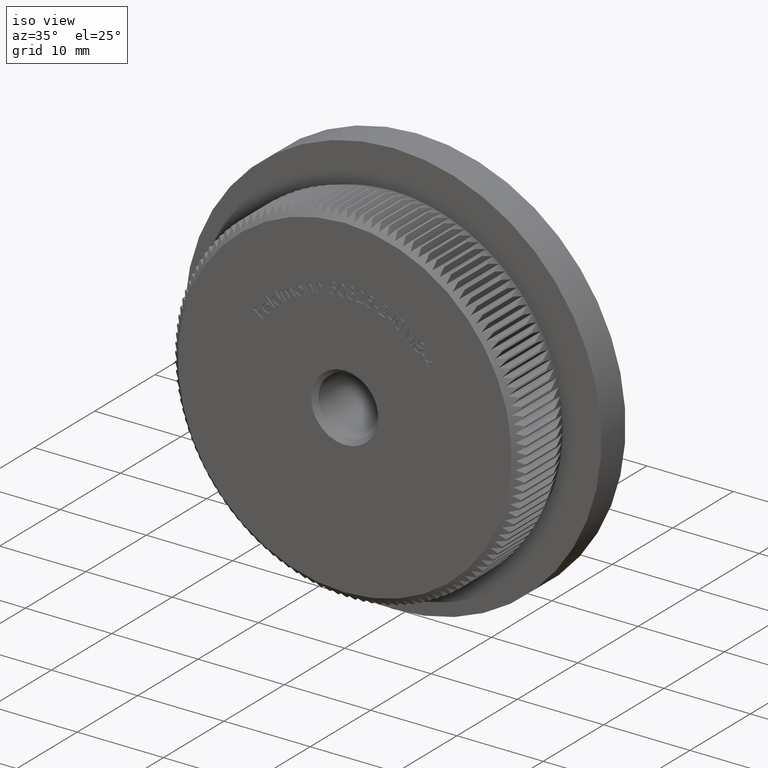
[diagram: clean part render]
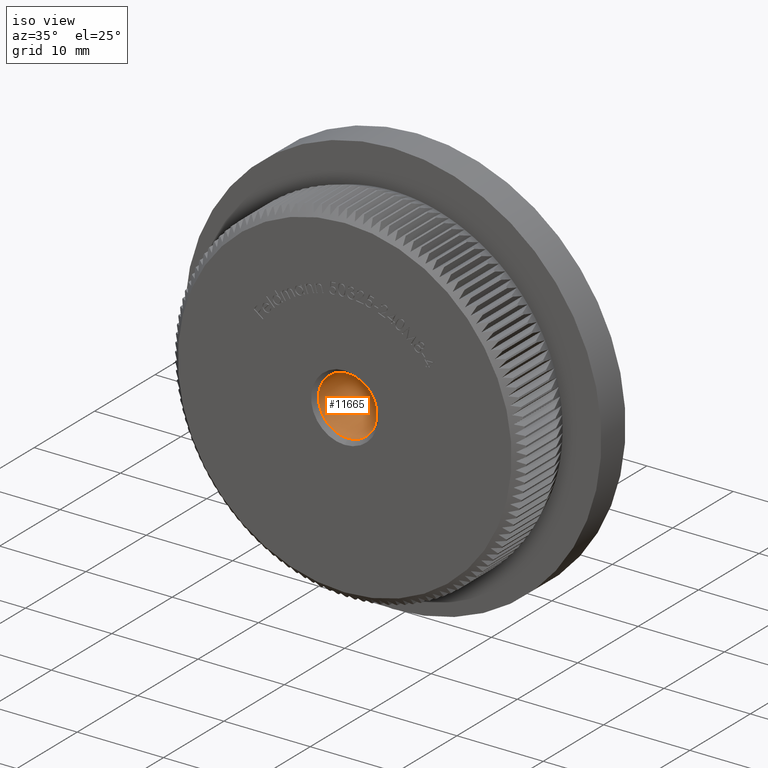
[diagram: same view with one face highlighted and labeled with its STEP entity id]
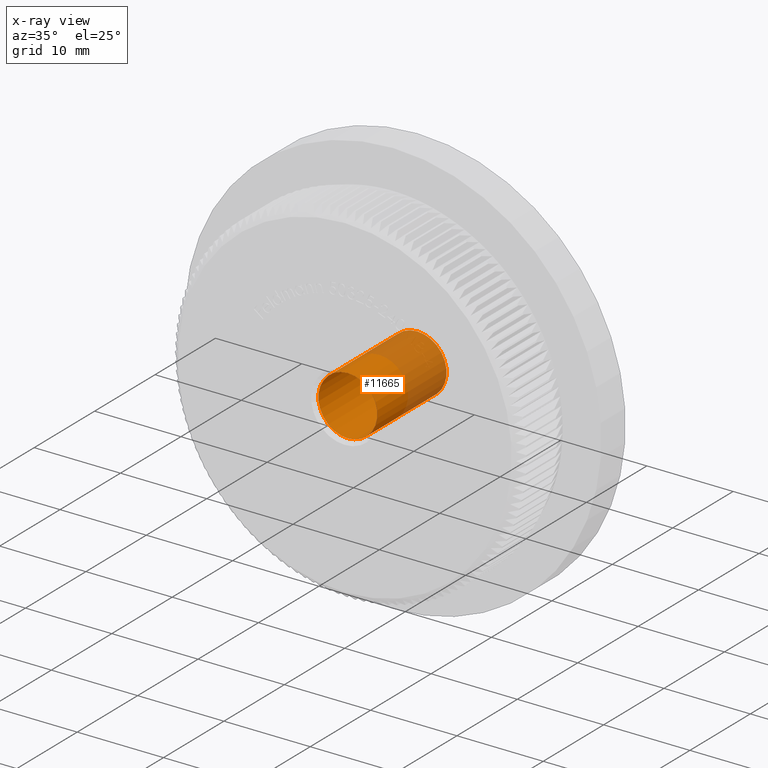
[diagram: x-ray of the same camera — body ghosted, the highlighted face saturated]
A machine part, iso view. The second image highlights one B-rep face of the part: STEP entity #11665.
The next image is the same camera in x-ray: the body ghosted, the highlighted face saturated — about 37% of this face is hidden behind the body in this view.
In plain terms, the highlighted cylindrical surface (bore or boss wall) has radius 3.4 mm, axis along (-0, -1, -0).
Its self-contained STEP definition (entity closure, byte-faithful):
#1960 = CARTESIAN_POINT ( 'NONE',  ( 0.0000000000000000000, 0.5000000000000076600, -3.399999999999997700 ) ) ;
#2195 = EDGE_CURVE ( 'NONE', #17715, #17715, #7514, .T. ) ;
#3105 = CARTESIAN_POINT ( 'NONE',  ( 0.0000000000000000000, 11.99999999999998000, 0.0000000000000000000 ) ) ;
#3508 = CIRCLE ( 'NONE', #17305, 3.399999999999997700 ) ;
#3864 = EDGE_LOOP ( 'NONE', ( #13737 ) ) ;
#4801 = DIRECTION ( 'NONE',  ( 0.0000000000000000000, 0.0000000000000000000, 1.000000000000000000 ) ) ;
#5044 = DIRECTION ( 'NONE',  ( 0.0000000000000000000, -1.000000000000000000, 0.0000000000000000000 ) ) ;
#5364 = DIRECTION ( 'NONE',  ( 0.0000000000000000000, 0.0000000000000000000, -1.000000000000000000 ) ) ;
#5914 = AXIS2_PLACEMENT_3D ( 'NONE', #27299, #5044, #5364 ) ;
#6809 = ORIENTED_EDGE ( 'NONE', *, *, #2195, .T. ) ;
#6832 = FACE_OUTER_BOUND ( 'NONE', #3864, .T. ) ;
#7167 = EDGE_LOOP ( 'NONE', ( #6809 ) ) ;
#7514 = CIRCLE ( 'NONE', #5914, 3.399999999999997700 ) ;
#11665 = ADVANCED_FACE ( 'NONE', ( #17549, #6832 ), #16014, .F. ) ;
#11906 = CARTESIAN_POINT ( 'NONE',  ( 0.0000000000000000000, 11.99999999999998000, 3.399999999999997700 ) ) ;
#12384 = VERTEX_POINT ( 'NONE', #11906 ) ;
#12972 = CARTESIAN_POINT ( 'NONE',  ( 0.0000000000000000000, 0.0000000000000000000, 0.0000000000000000000 ) ) ;
#13737 = ORIENTED_EDGE ( 'NONE', *, *, #21299, .T. ) ;
#16014 = CYLINDRICAL_SURFACE ( 'NONE', #31102, 3.399999999999997700 ) ;
#17112 = DIRECTION ( 'NONE',  ( -0.0000000000000000000, 1.000000000000000000, -0.0000000000000000000 ) ) ;
#17305 = AXIS2_PLACEMENT_3D ( 'NONE', #3105, #17112, #4801 ) ;
#17549 = FACE_OUTER_BOUND ( 'NONE', #7167, .T. ) ;
#17715 = VERTEX_POINT ( 'NONE', #1960 ) ;
#20765 = DIRECTION ( 'NONE',  ( -0.0000000000000000000, -1.000000000000000000, -0.0000000000000000000 ) ) ;
#21299 = EDGE_CURVE ( 'NONE', #12384, #12384, #3508, .T. ) ;
#25583 = DIRECTION ( 'NONE',  ( 0.0000000000000000000, 0.0000000000000000000, -1.000000000000000000 ) ) ;
#27299 = CARTESIAN_POINT ( 'NONE',  ( 0.0000000000000000000, 0.5000000000000076600, 0.0000000000000000000 ) ) ;
#31102 = AXIS2_PLACEMENT_3D ( 'NONE', #12972, #20765, #25583 ) ;